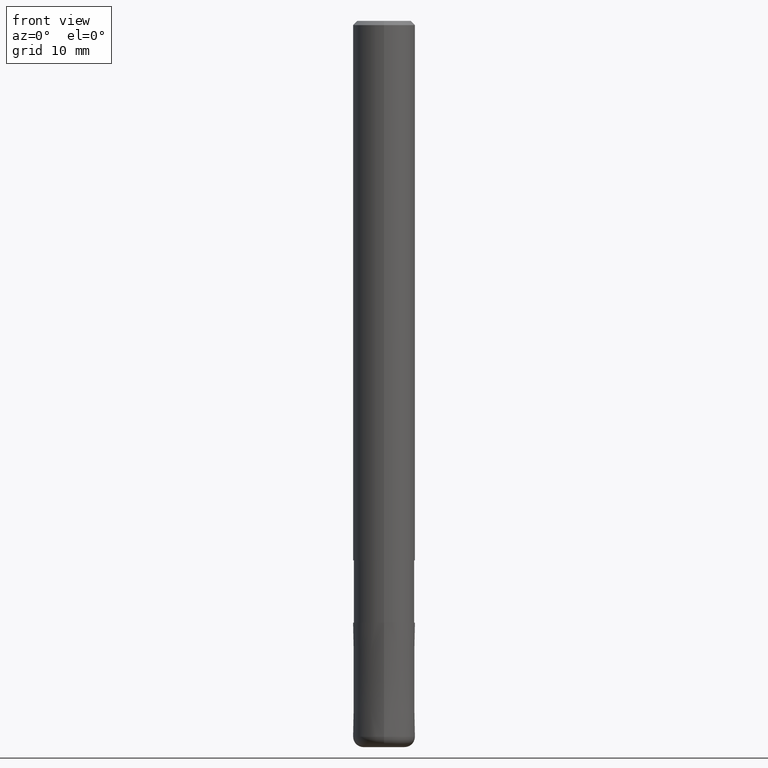
[diagram: clean part render]
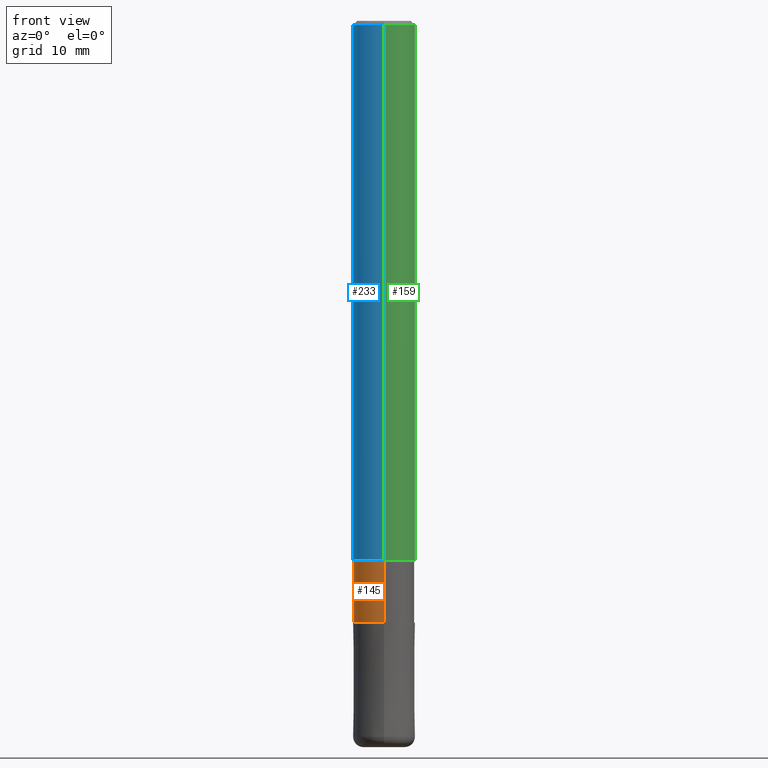
[diagram: same view with three faces highlighted in distinct colors, each labeled with its STEP entity id]
A machine part, front view with three faces highlighted in distinct colors.
Their STEP definitions:

[orange] entity #145 — the highlighted cylindrical surface (edge-blend (fillet) strip) has radius 2.9249 mm, axis along (-0, -0, 1).
#137=VERTEX_POINT('',#328);
#145=ADVANCED_FACE('',(#337),#338,.T.);
#149=VERTEX_POINT('',#344);
#155=EDGE_CURVE('',#279,#149,#350,.T.);
#157=EDGE_CURVE('',#165,#137,#352,.T.);
#165=VERTEX_POINT('',#361);
#235=EDGE_CURVE('',#149,#137,#442,.T.);
#237=EDGE_CURVE('',#165,#279,#444,.T.);
#279=VERTEX_POINT('',#490);
#328=CARTESIAN_POINT('',(0.0,2.92495,-58.0));
#337=FACE_OUTER_BOUND('',#549,.T.);
#338=CYLINDRICAL_SURFACE('',#550,2.92495);
#344=CARTESIAN_POINT('',(0.0,2.92495,-52.0));
#350=CIRCLE('',#563,2.92495);
#352=CIRCLE('',#566,2.92495);
#361=CARTESIAN_POINT('',(3.58191235461276E-016,-2.92495,-58.0));
#442=LINE('',#679,#680);
#444=LINE('',#683,#684);
#490=CARTESIAN_POINT('',(3.58191235461276E-016,-2.92495,-52.0));
#549=EDGE_LOOP('',(#805,#806,#807,#808));
#550=AXIS2_PLACEMENT_3D('',#809,#810,#811);
#563=AXIS2_PLACEMENT_3D('',#820,#821,#822);
#566=AXIS2_PLACEMENT_3D('',#823,#824,#825);
#679=CARTESIAN_POINT('',(-3.58191235461276E-016,2.92495,-55.0));
#680=VECTOR('',#940,1.0);
#683=CARTESIAN_POINT('',(3.58191235461276E-016,-2.92495,-55.0));
#684=VECTOR('',#941,1.0);
#805=ORIENTED_EDGE('',*,*,#235,.T.);
#806=ORIENTED_EDGE('',*,*,#157,.F.);
#807=ORIENTED_EDGE('',*,*,#237,.T.);
#808=ORIENTED_EDGE('',*,*,#155,.T.);
#809=CARTESIAN_POINT('',(0.0,0.0,-55.0));
#810=DIRECTION('',(-0.0,-0.0,1.0));
#811=DIRECTION('',(0.0,1.0,0.0));
#820=CARTESIAN_POINT('',(0.0,0.0,-52.0));
#821=DIRECTION('',(0.0,0.0,-1.0));
#822=DIRECTION('',(0.0,1.0,0.0));
#823=CARTESIAN_POINT('',(0.0,0.0,-58.0));
#824=DIRECTION('',(0.0,0.0,-1.0));
#825=DIRECTION('',(0.0,1.0,0.0));
#940=DIRECTION('',(0.0,0.0,-1.0));
#941=DIRECTION('',(-0.0,-0.0,1.0));

[blue] entity #233 — the highlighted cylindrical surface (edge-blend (fillet) strip) has radius 3 mm, axis along (-0, -0, 1).
#151=VERTEX_POINT('',#346);
#153=VERTEX_POINT('',#348);
#173=EDGE_CURVE('',#151,#261,#369,.T.);
#179=EDGE_CURVE('',#257,#261,#377,.T.);
#215=EDGE_CURVE('',#153,#257,#419,.T.);
#233=ADVANCED_FACE('',(#439),#440,.T.);
#243=EDGE_CURVE('',#151,#153,#450,.T.);
#257=VERTEX_POINT('',#465);
#261=VERTEX_POINT('',#469);
#346=CARTESIAN_POINT('',(3.67381906146713E-016,-3.0,-52.0));
#348=CARTESIAN_POINT('',(3.67381906146713E-016,-3.0,-0.399999999999999));
#369=CIRCLE('',#590,3.0);
#377=LINE('',#599,#600);
#419=CIRCLE('',#653,3.0);
#439=FACE_OUTER_BOUND('',#675,.T.);
#440=CYLINDRICAL_SURFACE('',#676,3.0);
#450=LINE('',#690,#691);
#465=CARTESIAN_POINT('',(0.0,3.0,-0.399999999999999));
#469=CARTESIAN_POINT('',(0.0,3.0,-52.0));
#590=AXIS2_PLACEMENT_3D('',#842,#843,#844);
#599=CARTESIAN_POINT('',(-3.67381906146713E-016,3.0,-26.2));
#600=VECTOR('',#861,1.0);
#653=AXIS2_PLACEMENT_3D('',#907,#908,#909);
#675=EDGE_LOOP('',(#933,#934,#935,#936));
#676=AXIS2_PLACEMENT_3D('',#937,#938,#939);
#690=CARTESIAN_POINT('',(3.67381906146713E-016,-3.0,-26.2));
#691=VECTOR('',#943,1.0);
#842=CARTESIAN_POINT('',(0.0,0.0,-52.0));
#843=DIRECTION('',(0.0,0.0,-1.0));
#844=DIRECTION('',(0.0,1.0,0.0));
#861=DIRECTION('',(0.0,0.0,-1.0));
#907=CARTESIAN_POINT('',(0.0,0.0,-0.399999999999999));
#908=DIRECTION('',(0.0,0.0,-1.0));
#909=DIRECTION('',(0.0,1.0,0.0));
#933=ORIENTED_EDGE('',*,*,#179,.T.);
#934=ORIENTED_EDGE('',*,*,#173,.F.);
#935=ORIENTED_EDGE('',*,*,#243,.T.);
#936=ORIENTED_EDGE('',*,*,#215,.T.);
#937=CARTESIAN_POINT('',(0.0,0.0,-26.2));
#938=DIRECTION('',(-0.0,-0.0,1.0));
#939=DIRECTION('',(0.0,1.0,0.0));
#943=DIRECTION('',(-0.0,-0.0,1.0));

[green] entity #159 — the highlighted cylindrical surface (edge-blend (fillet) strip) has radius 3 mm, axis along (-0, -0, 1).
#151=VERTEX_POINT('',#346);
#153=VERTEX_POINT('',#348);
#159=ADVANCED_FACE('',(#354),#355,.T.);
#161=EDGE_CURVE('',#261,#151,#357,.T.);
#179=EDGE_CURVE('',#257,#261,#377,.T.);
#243=EDGE_CURVE('',#151,#153,#450,.T.);
#253=EDGE_CURVE('',#257,#153,#461,.T.);
#257=VERTEX_POINT('',#465);
#261=VERTEX_POINT('',#469);
#346=CARTESIAN_POINT('',(3.67381906146713E-016,-3.0,-52.0));
#348=CARTESIAN_POINT('',(3.67381906146713E-016,-3.0,-0.399999999999999));
#354=FACE_OUTER_BOUND('',#568,.T.);
#355=CYLINDRICAL_SURFACE('',#569,3.0);
#357=CIRCLE('',#572,3.0);
#377=LINE('',#599,#600);
#450=LINE('',#690,#691);
#461=CIRCLE('',#705,3.0);
#465=CARTESIAN_POINT('',(0.0,3.0,-0.399999999999999));
#469=CARTESIAN_POINT('',(0.0,3.0,-52.0));
#568=EDGE_LOOP('',(#827,#828,#829,#830));
#569=AXIS2_PLACEMENT_3D('',#831,#832,#833);
#572=AXIS2_PLACEMENT_3D('',#834,#835,#836);
#599=CARTESIAN_POINT('',(-3.67381906146713E-016,3.0,-26.2));
#600=VECTOR('',#861,1.0);
#690=CARTESIAN_POINT('',(3.67381906146713E-016,-3.0,-26.2));
#691=VECTOR('',#943,1.0);
#705=AXIS2_PLACEMENT_3D('',#958,#959,#960);
#827=ORIENTED_EDGE('',*,*,#179,.F.);
#828=ORIENTED_EDGE('',*,*,#253,.T.);
#829=ORIENTED_EDGE('',*,*,#243,.F.);
#830=ORIENTED_EDGE('',*,*,#161,.F.);
#831=CARTESIAN_POINT('',(0.0,0.0,-26.2));
#832=DIRECTION('',(-0.0,-0.0,1.0));
#833=DIRECTION('',(0.0,1.0,0.0));
#834=CARTESIAN_POINT('',(0.0,0.0,-52.0));
#835=DIRECTION('',(0.0,0.0,-1.0));
#836=DIRECTION('',(0.0,1.0,0.0));
#861=DIRECTION('',(0.0,0.0,-1.0));
#943=DIRECTION('',(-0.0,-0.0,1.0));
#958=CARTESIAN_POINT('',(0.0,0.0,-0.399999999999999));
#959=DIRECTION('',(0.0,0.0,-1.0));
#960=DIRECTION('',(0.0,1.0,0.0));